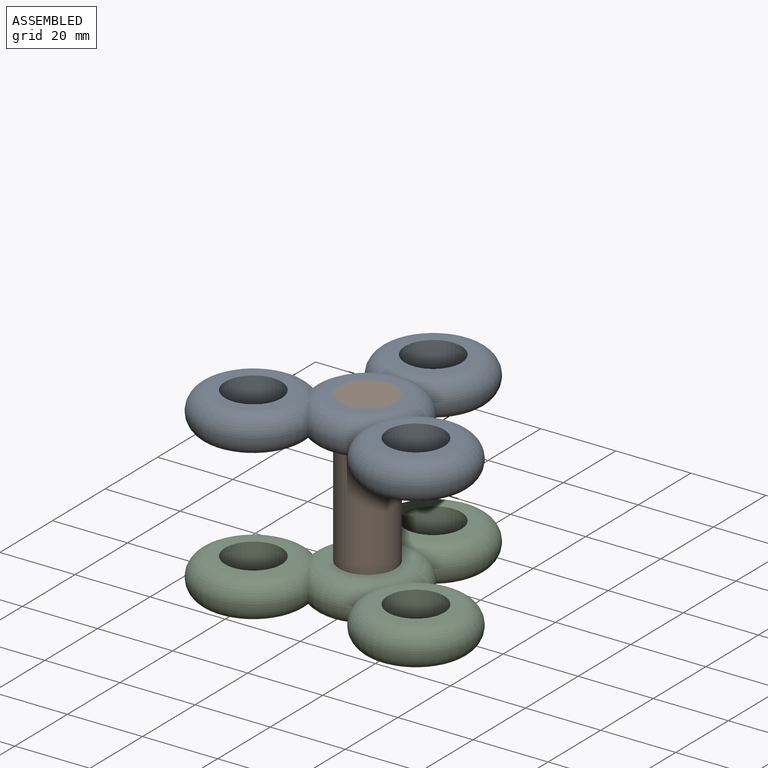
[diagram: assembled view]
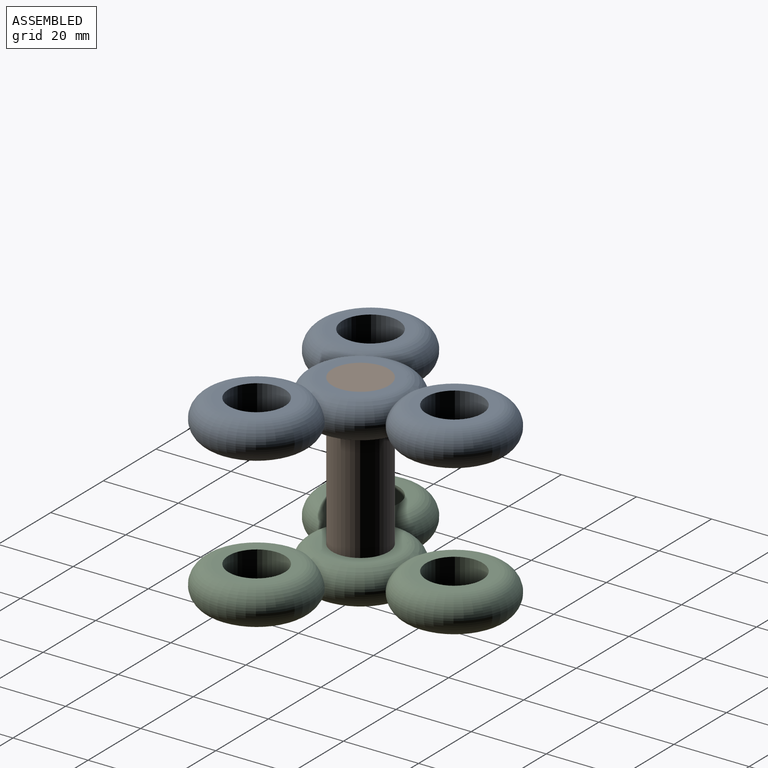
[diagram: assembled view, second angle]
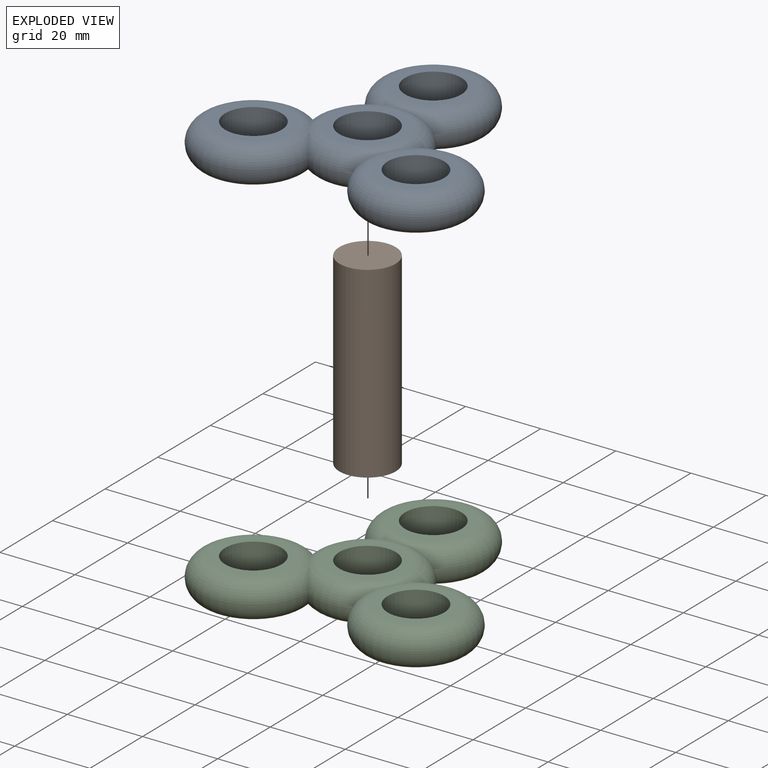
[diagram: exploded view]
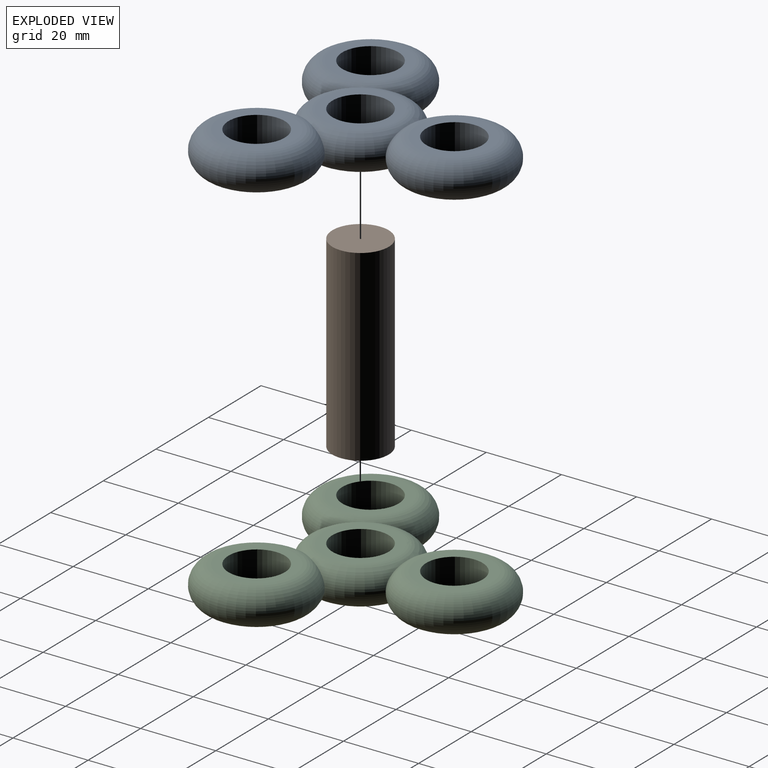
[diagram: exploded view, second angle]
ASSEMBLY  parts=3 mates=2
PART A: 16 faces, bbox 75.8x70x10 mm
  f0: plane 20x20mm, normal (0,0,1), area 137.4mm2, adj f6,f12
  f1: plane 20x20mm, normal (0,0,1), area 137.4mm2, adj f9,f15
  f2: plane 20x20mm, normal (0,0,1), area 137.4mm2, adj f7,f13
  f3: plane 20x20mm, normal (0,0,-1), area 137.4mm2, adj f9,f15
  f4: plane 20x20mm, normal (0,0,-1), area 137.4mm2, adj f6,f12
  f5: plane 20x20mm, normal (0,0,-1), area 137.4mm2, adj f7,f13
  f6: cylinder r=7.5mm len=15mm, axis (0,0,-1), area 471.2mm2, adj f0,f4
  f7: cylinder r=7.5mm len=15mm, axis (0,0,-1), area 471.2mm2, adj f2,f5
  f8: cylinder r=7.5mm len=15mm, axis (0,0,-1), area 471.2mm2, adj f10,f11
  f9: cylinder r=7.5mm len=15mm, axis (0,0,-1), area 471.2mm2, adj f1,f3
  f10: plane 20x20mm, normal (0,0,1), area 137.4mm2, adj f8,f14
  f11: plane 20x20mm, normal (0,0,-1), area 137.4mm2, adj f8,f14
  f12: torus R=10mm, axis (0,0,1), area 883.7mm2, adj f0,f4,f13,f14,f15
  f13: torus R=10mm, axis (0,0,1), area 1162mm2, adj f2,f5,f12
  f14: torus R=10mm, axis (0,0,1), area 1162mm2, adj f10,f11,f12
  f15: torus R=10mm, axis (0,0,1), area 1162mm2, adj f1,f3,f12
PART B: 3 faces, bbox 15x15x50 mm
  f0: cylinder r=7.5mm len=50mm, axis (0,0,-1), area 2356.2mm2, adj f1,f2
  f1: plane 15x15mm, normal (0,0,1), area 176.7mm2, adj f0
  f2: plane 15x15mm, normal (0,0,-1), area 176.7mm2, adj f0
PART C: same geometry as A
PLACE A t=(60.23,-23.29,-5.06)mm
PLACE B t=(60.23,-23.29,-45.06)mm
PLACE C t=(60.23,-23.29,-45.06)mm
MATE revolute C.f6 <-> B.f0  axis (0,0,-1) through (60.23,-23.29,-45.06)mm
MATE revolute A.f6 <-> B.f0  axis (0,0,-1) through (60.23,-23.29,4.94)mm
